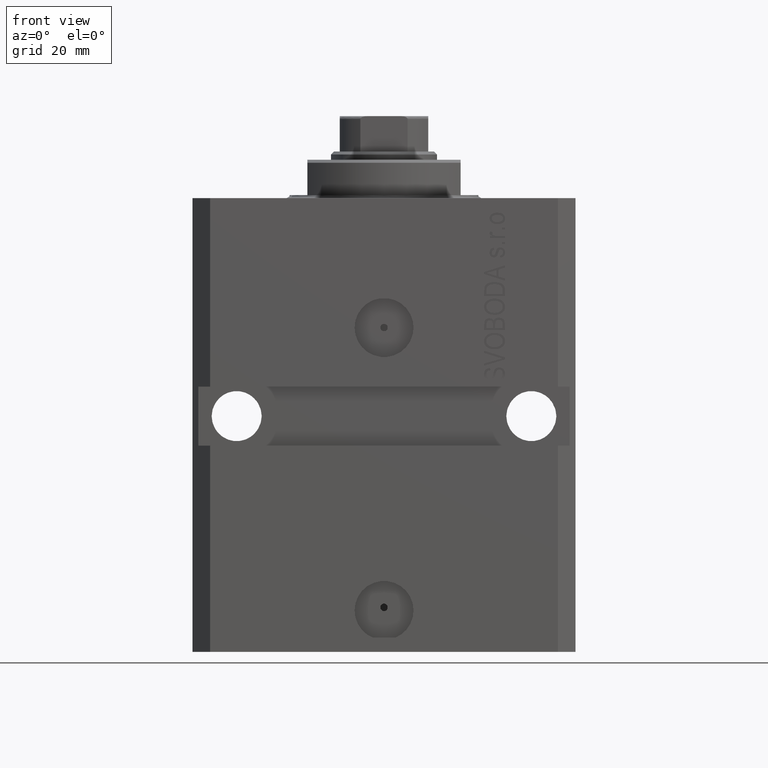
[diagram: clean part render]
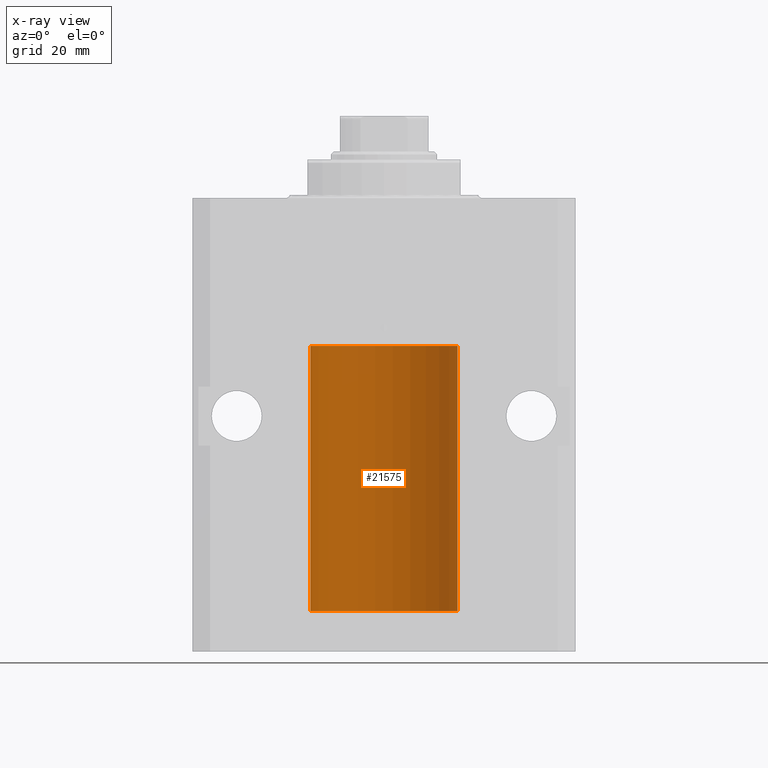
[diagram: x-ray — body ghosted, one internal face saturated and labeled with its STEP entity id]
A machine part, front view, then the same camera in x-ray: the body is ghosted and one INTERNAL B-rep face — a face not visible from any outside direction — is saturated and labeled: STEP entity #21575.
In plain terms, the highlighted cylindrical surface (partial cylindrical patch) has radius 12.5 mm, axis along (0, 0, 1).
Its self-contained STEP definition (entity closure, byte-faithful):
#85 = CARTESIAN_POINT ( 'NONE',  ( 12.50000000000000000, 0.000000000000000000, -70.09999999999999432 ) ) ;
#159 = VERTEX_POINT ( 'NONE', #30999 ) ;
#431 = EDGE_CURVE ( 'NONE', #34625, #4187, #809, .T. ) ;
#809 = LINE ( 'NONE', #85, #31237 ) ;
#955 = CARTESIAN_POINT ( 'NONE',  ( -12.49422197749724539, 0.3843754434364305972, -64.50047099568097053 ) ) ;
#1036 = CIRCLE ( 'NONE', #38019, 12.50000000000000000 ) ;
#1244 = ORIENTED_EDGE ( 'NONE', *, *, #35972, .T. ) ;
#1367 = CARTESIAN_POINT ( 'NONE',  ( 0.000000000000000000, 0.000000000000000000, -25.10000000000000142 ) ) ;
#1729 = VECTOR ( 'NONE', #20559, 1000.000000000000000 ) ;
#3532 = CARTESIAN_POINT ( 'NONE',  ( 12.48436522214888100, 0.6249999999996834754, -64.91847339462351840 ) ) ;
#3821 = EDGE_CURVE ( 'NONE', #30675, #11566, #40061, .T. ) ;
#4187 = VERTEX_POINT ( 'NONE', #9659 ) ;
#4581 = CARTESIAN_POINT ( 'NONE',  ( -12.50000000000017941, 3.883381774819353300E-13, -65.62500000000359535 ) ) ;
#5046 = B_SPLINE_CURVE_WITH_KNOTS ( 'NONE', 3,
 ( #14647, #3532, #11500, #26441, #22361, #37052, #8123, #15137 ),
 .UNSPECIFIED., .F., .F.,
 ( 4, 2, 2, 4 ),
 ( 0.0009773924225142606621, 0.001221629287363811033, 0.001465866152213361404, 0.001954339881912461711 ),
 .UNSPECIFIED. ) ;
#5658 = VERTEX_POINT ( 'NONE', #9157 ) ;
#5917 = CARTESIAN_POINT ( 'NONE',  ( -12.50000000000000000, 1.530808498934191127E-15, -25.10000000000000142 ) ) ;
#6562 = DIRECTION ( 'NONE',  ( -0.000000000000000000, -0.000000000000000000, 1.000000000000000000 ) ) ;
#6682 = CARTESIAN_POINT ( 'NONE',  ( 12.50000000000000000, 0.000000000000000000, -70.09999999999999432 ) ) ;
#6862 = DIRECTION ( 'NONE',  ( 1.000000000000000000, 0.000000000000000000, 0.000000000000000000 ) ) ;
#7305 = CARTESIAN_POINT ( 'NONE',  ( -12.48809959379011580, 0.5462151254764967545, -65.31461370481615347 ) ) ;
#8065 = DIRECTION ( 'NONE',  ( -0.000000000000000000, -0.000000000000000000, 1.000000000000000000 ) ) ;
#8123 = CARTESIAN_POINT ( 'NONE',  ( 12.49999999999999822, 0.1631389616600901760, -64.37500000000022737 ) ) ;
#9121 = CARTESIAN_POINT ( 'NONE',  ( 12.49625698805481022, 0.3151108292486944906, -65.54593695688173227 ) ) ;
#9157 = CARTESIAN_POINT ( 'NONE',  ( -12.50000000000000000, 1.530808498934191127E-15, -70.09999999999999432 ) ) ;
#9659 = CARTESIAN_POINT ( 'NONE',  ( 12.50000000000000000, 0.000000000000000000, -25.10000000000000142 ) ) ;
#10855 = B_SPLINE_CURVE_WITH_KNOTS ( 'NONE', 3,
 ( #25617, #40338, #34003, #15704, #955, #37616, #41254, #19549, #30388, #7305, #22022, #22924, #45324, #4581 ),
 .UNSPECIFIED., .F., .F.,
 ( 4, 2, 2, 2, 2, 2, 4 ),
 ( 3.452213508042194616E-18, 0.0002442924852390797774, 0.0004885849704781561938, 0.0009771699409563384085, 0.001221462426195450224, 0.001465754911434562040, 0.001954339881912785671 ),
 .UNSPECIFIED. ) ;
#11303 = VERTEX_POINT ( 'NONE', #6682 ) ;
#11500 = CARTESIAN_POINT ( 'NONE',  ( 12.48520578595314845, 0.6087855079133740466, -64.83656717509344958 ) ) ;
#11566 = VERTEX_POINT ( 'NONE', #5917 ) ;
#12470 = CYLINDRICAL_SURFACE ( 'NONE', #46486, 12.50000000000000000 ) ;
#12727 = DIRECTION ( 'NONE',  ( 0.000000000000000000, 0.000000000000000000, 1.000000000000000000 ) ) ;
#13745 = EDGE_LOOP ( 'NONE', ( #47240, #16872, #1244, #35336, #40821, #22152, #17470, #27207, #33529 ) ) ;
#13932 = CARTESIAN_POINT ( 'NONE',  ( 12.49915742890631876, 0.1636982395582385896, -65.60872397847025184 ) ) ;
#14647 = CARTESIAN_POINT ( 'NONE',  ( 12.48436522214846711, 0.6250000000078848039, -64.99999999999923261 ) ) ;
#15137 = CARTESIAN_POINT ( 'NONE',  ( 12.50000000000017941, 3.868073689162038701E-13, -64.37499999999640465 ) ) ;
#15704 = CARTESIAN_POINT ( 'NONE',  ( -12.49625855304193855, 0.3150454781038045660, -64.45402800297485157 ) ) ;
#16100 = DIRECTION ( 'NONE',  ( 1.000000000000000000, 0.000000000000000000, 0.000000000000000000 ) ) ;
#16872 = ORIENTED_EDGE ( 'NONE', *, *, #42188, .F. ) ;
#17470 = ORIENTED_EDGE ( 'NONE', *, *, #37894, .T. ) ;
#17561 = CARTESIAN_POINT ( 'NONE',  ( 12.50000000000000000, -1.836039810331332019E-15, -65.62500000000000000 ) ) ;
#18489 = EDGE_CURVE ( 'NONE', #32718, #34625, #5046, .T. ) ;
#19549 = CARTESIAN_POINT ( 'NONE',  ( -12.48436376893640087, 0.6250290278979918623, -65.08132082824472775 ) ) ;
#20187 = DIRECTION ( 'NONE',  ( -0.000000000000000000, -0.000000000000000000, 1.000000000000000000 ) ) ;
#20228 = CARTESIAN_POINT ( 'NONE',  ( 12.49421963472024721, 0.3844519291903572555, -65.49947303647046226 ) ) ;
#20559 = DIRECTION ( 'NONE',  ( -0.000000000000000000, -0.000000000000000000, 1.000000000000000000 ) ) ;
#20661 = CARTESIAN_POINT ( 'NONE',  ( 0.000000000000000000, 0.000000000000000000, -70.09999999999999432 ) ) ;
#21063 = CIRCLE ( 'NONE', #41102, 12.50000000000000000 ) ;
#21098 = CARTESIAN_POINT ( 'NONE',  ( 12.50000000000017941, 3.868073689162038701E-13, -64.37499999999640465 ) ) ;
#21575 = ADVANCED_FACE ( 'NONE', ( #27170 ), #12470, .F. ) ;
#22022 = CARTESIAN_POINT ( 'NONE',  ( -12.49011732893843707, 0.5003763274120244242, -65.38348111289288056 ) ) ;
#22152 = ORIENTED_EDGE ( 'NONE', *, *, #431, .T. ) ;
#22361 = CARTESIAN_POINT ( 'NONE',  ( 12.49012055744648997, 0.5002956126656082914, -64.61641710202404454 ) ) ;
#22924 = CARTESIAN_POINT ( 'NONE',  ( -12.49631005746706158, 0.3253680783018496059, -65.55856740465392818 ) ) ;
#25617 = CARTESIAN_POINT ( 'NONE',  ( -12.50000000000000000, -1.050566418211748297E-14, -64.37500000000000000 ) ) ;
#26441 = CARTESIAN_POINT ( 'NONE',  ( 12.48810305280568222, 0.5461368461738485003, -64.68525466142676805 ) ) ;
#27170 = FACE_OUTER_BOUND ( 'NONE', #13745, .T. ) ;
#27207 = ORIENTED_EDGE ( 'NONE', *, *, #3821, .F. ) ;
#30388 = CARTESIAN_POINT ( 'NONE',  ( -12.48520330846398174, 0.6088355886774118320, -65.16325431852561678 ) ) ;
#30675 = VERTEX_POINT ( 'NONE', #31276 ) ;
#30731 = EDGE_CURVE ( 'NONE', #5658, #159, #43555, .T. ) ;
#30999 = CARTESIAN_POINT ( 'NONE',  ( -12.50000000000017941, 3.883381774819353300E-13, -65.62500000000359535 ) ) ;
#31237 = VECTOR ( 'NONE', #8065, 1000.000000000000000 ) ;
#31276 = CARTESIAN_POINT ( 'NONE',  ( -12.50000000000000000, -1.050566418211748297E-14, -64.37500000000000000 ) ) ;
#32056 = CARTESIAN_POINT ( 'NONE',  ( 12.50000000000000000, -1.836039810331332019E-15, -65.62500000000000000 ) ) ;
#32117 = CARTESIAN_POINT ( 'NONE',  ( -12.50000000000000000, 1.530808498934191127E-15, -70.09999999999999432 ) ) ;
#32718 = VERTEX_POINT ( 'NONE', #37657 ) ;
#32944 = CARTESIAN_POINT ( 'NONE',  ( 12.48809900631782099, 0.5573988467445673001, -65.32640147935475738 ) ) ;
#33336 = B_SPLINE_CURVE_WITH_KNOTS ( 'NONE', 3,
 ( #17561, #46949, #13932, #9121, #20228, #32944, #37045, #44036 ),
 .UNSPECIFIED., .F., .F.,
 ( 4, 2, 2, 4 ),
 ( 1.784246692340212412E-18, 0.0002443481056285665750, 0.0004886962112571313068, 0.0009773924225142606621 ),
 .UNSPECIFIED. ) ;
#33529 = ORIENTED_EDGE ( 'NONE', *, *, #33913, .T. ) ;
#33913 = EDGE_CURVE ( 'NONE', #30675, #159, #10855, .T. ) ;
#34003 = CARTESIAN_POINT ( 'NONE',  ( -12.49915784441386890, 0.1636601911727942615, -64.39126818989430490 ) ) ;
#34625 = VERTEX_POINT ( 'NONE', #21098 ) ;
#35336 = ORIENTED_EDGE ( 'NONE', *, *, #41834, .T. ) ;
#35972 = EDGE_CURVE ( 'NONE', #11303, #40652, #36184, .T. ) ;
#36184 = LINE ( 'NONE', #47281, #1729 ) ;
#37045 = CARTESIAN_POINT ( 'NONE',  ( 12.48436522214885969, 0.6250000000001505462, -65.16312747540307271 ) ) ;
#37052 = CARTESIAN_POINT ( 'NONE',  ( 12.49631206032076136, 0.3252904079142934779, -64.44139700214927302 ) ) ;
#37616 = CARTESIAN_POINT ( 'NONE',  ( -12.48810268015257741, 0.5573155909661291485, -64.67347410093869087 ) ) ;
#37657 = CARTESIAN_POINT ( 'NONE',  ( 12.48436522214846711, 0.6250000000078848039, -64.99999999999923261 ) ) ;
#37894 = EDGE_CURVE ( 'NONE', #4187, #11566, #21063, .T. ) ;
#38019 = AXIS2_PLACEMENT_3D ( 'NONE', #43746, #43981, #6862 ) ;
#39703 = CARTESIAN_POINT ( 'NONE',  ( -12.50000000000000000, 1.530808498934191127E-15, -70.09999999999999432 ) ) ;
#40061 = LINE ( 'NONE', #32117, #45978 ) ;
#40338 = CARTESIAN_POINT ( 'NONE',  ( -12.49999999999999645, 0.08260426088728482774, -64.37499999999998579 ) ) ;
#40652 = VERTEX_POINT ( 'NONE', #32056 ) ;
#40821 = ORIENTED_EDGE ( 'NONE', *, *, #18489, .T. ) ;
#41102 = AXIS2_PLACEMENT_3D ( 'NONE', #1367, #12727, #16100 ) ;
#41254 = CARTESIAN_POINT ( 'NONE',  ( -12.48436813453758454, 0.6249418250771179295, -64.83668996798921569 ) ) ;
#41834 = EDGE_CURVE ( 'NONE', #40652, #32718, #33336, .T. ) ;
#42188 = EDGE_CURVE ( 'NONE', #11303, #5658, #1036, .T. ) ;
#42449 = VECTOR ( 'NONE', #47404, 1000.000000000000000 ) ;
#43555 = LINE ( 'NONE', #39703, #42449 ) ;
#43746 = CARTESIAN_POINT ( 'NONE',  ( 0.000000000000000000, 0.000000000000000000, -70.09999999999999432 ) ) ;
#43981 = DIRECTION ( 'NONE',  ( 0.000000000000000000, 0.000000000000000000, 1.000000000000000000 ) ) ;
#44036 = CARTESIAN_POINT ( 'NONE',  ( 12.48436522214846711, 0.6250000000078848039, -64.99999999999923261 ) ) ;
#45324 = CARTESIAN_POINT ( 'NONE',  ( -12.49999999999999289, 0.1631761135151231223, -65.62499999999984368 ) ) ;
#45978 = VECTOR ( 'NONE', #6562, 1000.000000000000000 ) ;
#46446 = DIRECTION ( 'NONE',  ( 1.000000000000000000, 0.000000000000000000, 0.000000000000000000 ) ) ;
#46486 = AXIS2_PLACEMENT_3D ( 'NONE', #20661, #20187, #46446 ) ;
#46949 = CARTESIAN_POINT ( 'NONE',  ( 12.49999999999999822, 0.08262306818362624705, -65.62500000000000000 ) ) ;
#47240 = ORIENTED_EDGE ( 'NONE', *, *, #30731, .F. ) ;
#47281 = CARTESIAN_POINT ( 'NONE',  ( 12.50000000000000000, 0.000000000000000000, -70.09999999999999432 ) ) ;
#47404 = DIRECTION ( 'NONE',  ( -0.000000000000000000, -0.000000000000000000, 1.000000000000000000 ) ) ;